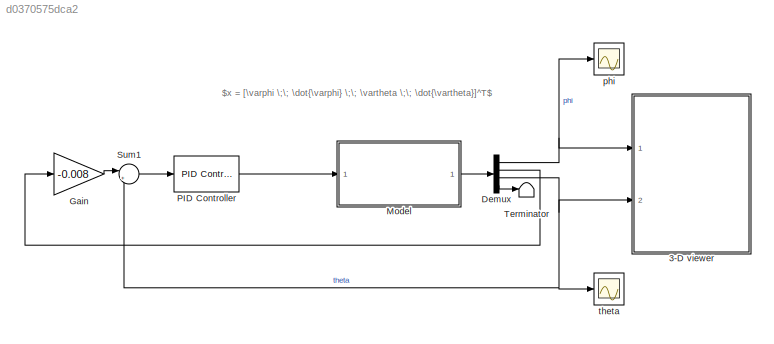
MODEL slx_d0370575dca2
KIND model
CONFIG AbsTol = auto
CONFIG EnableMultiTasking = off
CONFIG FixedStep = auto
CONFIG MaxStep = auto
CONFIG MinStep = auto
CONFIG RelTol = 1e-3
CONFIG SampleTimeConstraint = Unconstrained
CONFIG SolverName = VariableStepAuto
CONFIG StartTime = 0.0
CONFIG StopTime = 10.0
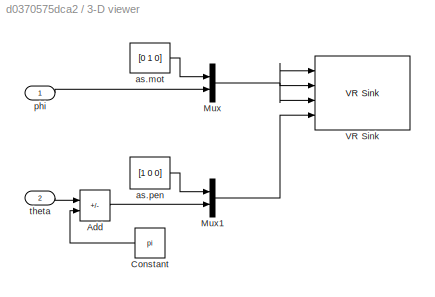
BLOCK [SubSystem] 3-D viewer
  Ports = [2]
  RequestExecContextInheritance = off
BLOCK [Sum] 3-D viewer/Add
  IconShape = rectangular
  Inputs = -+
  Ports = [2, 1]
BLOCK [Constant] 3-D viewer/Constant
  Value = pi
BLOCK [Mux] 3-D viewer/Mux
  DisplayOption = bar
  Inputs = 2
  Ports = [2, 1]
BLOCK [Mux] 3-D viewer/Mux1
  DisplayOption = bar
  Inputs = 2
  Ports = [2, 1]
BLOCK [Reference] 3-D viewer/VR Sink  REF=vrlib/VR Sink
  InstantiateOnLoad = on
  Ports = [4]
  SourceBlock = vrlib/VR Sink
  SourceProductBaseCode = SL
  SourceType = Virtual Reality Sink
BLOCK [Constant] 3-D viewer/as.mot
  Value = [0 1 0]
BLOCK [Constant] 3-D viewer/as.pen
  Value = [1 0 0]
BLOCK [Inport] 3-D viewer/phi
BLOCK [Inport] 3-D viewer/theta
  Port = 2
BLOCK [Demux] Demux
  Ports = [1, 4]
BLOCK [Gain] Gain
  Gain = -0.008
BLOCK [ModelReference] Model
  ModelNameDialog = furuta_model.slx
  ModelReferenceVersion = 1.21
  Ports = [1, 1]
BLOCK [Reference] PID Controller  REF=pid_lib/PID Controller
  Ports = [1, 1]
  SourceBlock = pid_lib/PID Controller
  SourceProductBaseCode = SL
  SourceType = PID 1dof
BLOCK [Sum] Sum1
  Inputs = |+-
  Ports = [2, 1]
BLOCK [Terminator] Terminator
BLOCK [Scope] phi
  Floating = off
  NumInputPorts = 1
  Ports = [1]
  ScopeSpecificationString = Simulink.scopes.TimeScopeBlockCfg('CurrentConfiguration', extmgr.ConfigurationSet(extmgr.Configuration('Core','General UI',true),extmgr.Configuration('Core','Source UI',true),extmgr.Configuration('Sources','WiredSimulink',true,'DataLoggingSaveFormat','StructureWithTime','DataLoggingDecimation','1','DataLoggingDecimateData',true,'DataLoggingVariableName','ScopeData1'),extmgr.Configuration('Visuals'...<+1666ch>
BLOCK [Scope] theta
  Floating = off
  NumInputPorts = 1
  Ports = [1]
  ScopeSpecificationString = Simulink.scopes.TimeScopeBlockCfg('CurrentConfiguration', extmgr.ConfigurationSet(extmgr.Configuration('Core','General UI',true),extmgr.Configuration('Core','Source UI',true),extmgr.Configuration('Sources','WiredSimulink',true,'DataLoggingSaveFormat','StructureWithTime','DataLoggingDecimation','1','DataLoggingDecimateData',true,'DataLogging',true,'SampleTime','0.01'),extmgr.Configuration('Visuals'...<+1688ch>
ANNOTATION (root): $x = [\varphi \;\; \dot{\varphi} \;\; \vartheta \;\; \dot{\vartheta}]^T$
LINE 3-D viewer/Add:1 -> 3-D viewer/Mux1:2
LINE 3-D viewer/Constant:1 -> 3-D viewer/Add:2
LINE 3-D viewer/Mux1:1 -> 3-D viewer/VR Sink:4
NET 3-D viewer/Mux:1 -> 3-D viewer/VR Sink:1, 3-D viewer/VR Sink:2, 3-D viewer/VR Sink:3
LINE 3-D viewer/as.mot:1 -> 3-D viewer/Mux:1
LINE 3-D viewer/as.pen:1 -> 3-D viewer/Mux1:1
LINE 3-D viewer/phi:1 -> 3-D viewer/Mux:2
LINE 3-D viewer/theta:1 -> 3-D viewer/Add:1
NET Demux:1 -> 3-D viewer:1, phi:1
LINE Demux:2 -> Gain:1
NET Demux:3 -> 3-D viewer:2, Sum1:2, theta:1
LINE Demux:4 -> Terminator:1
LINE Gain:1 -> Sum1:1
LINE Model:1 -> Demux:1
LINE PID Controller:1 -> Model:1
LINE Sum1:1 -> PID Controller:1
note: NET lines group one-source signal fan-out (src -> all destinations, sorted); 1:1 wires keep LINE
